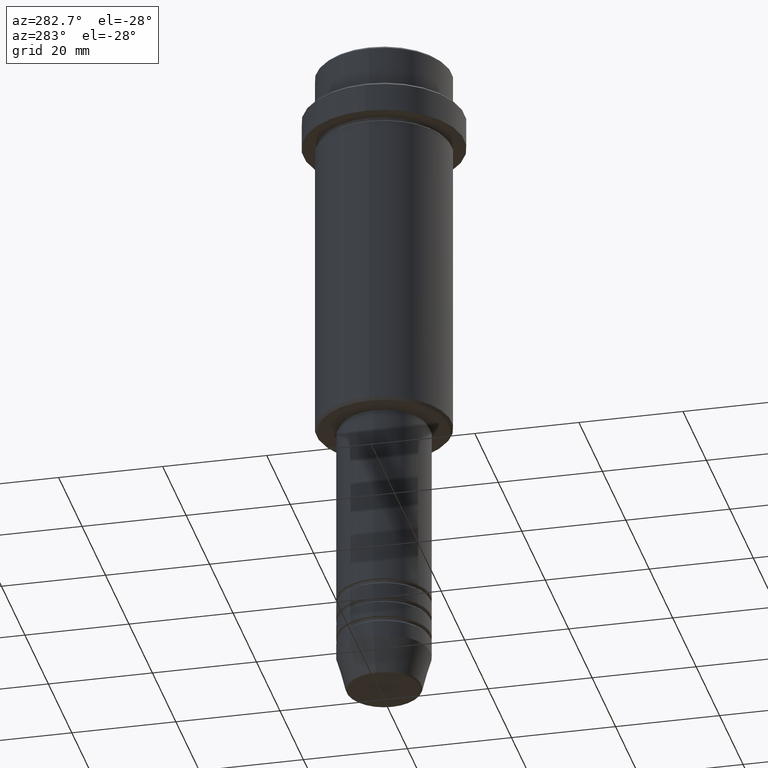
[diagram: clean part render]
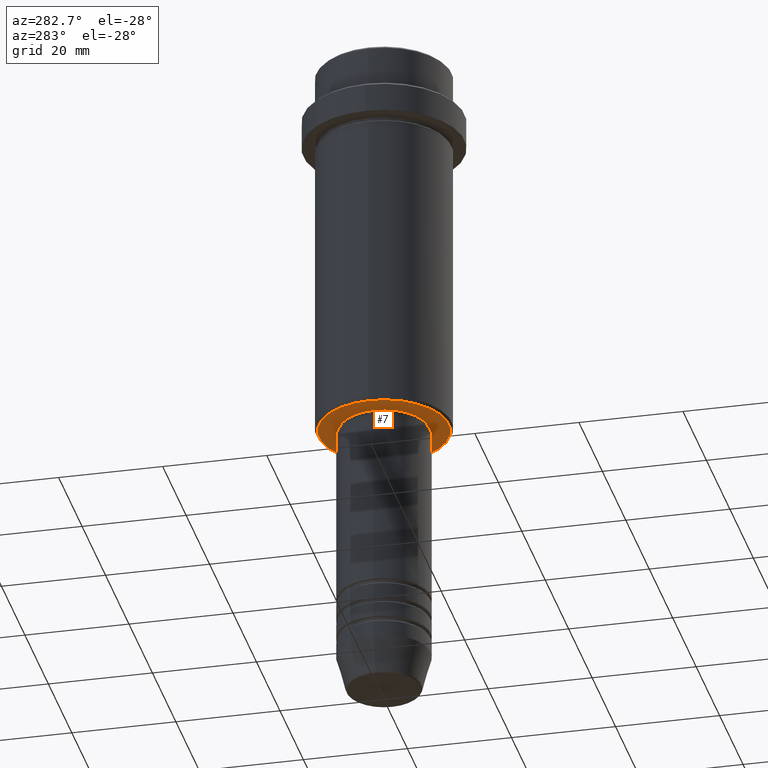
[diagram: same view with one face highlighted and labeled with its STEP entity id]
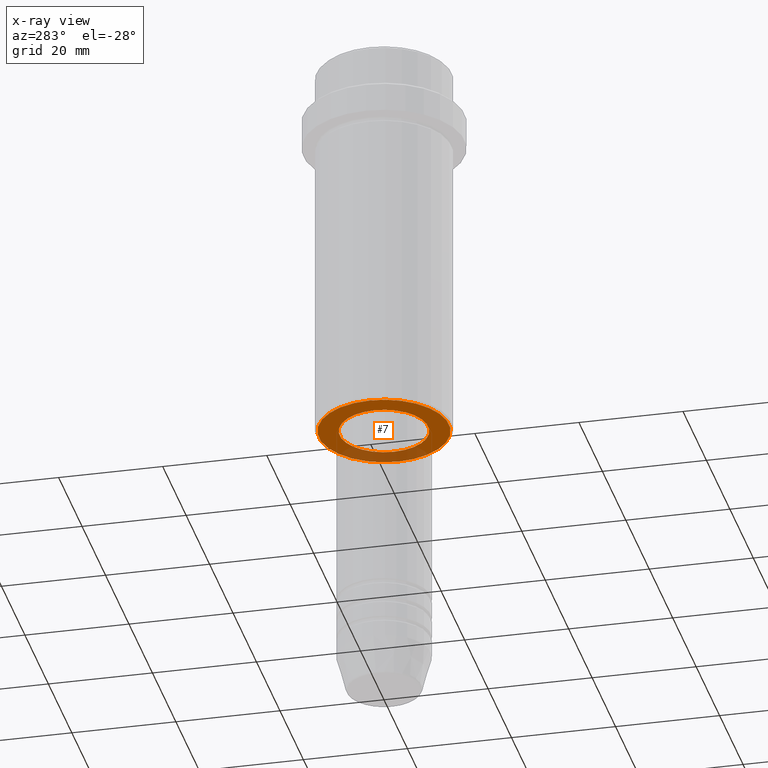
[diagram: x-ray of the same camera — body ghosted, the highlighted face saturated]
A machine part, auxiliary view. The second image highlights one B-rep face of the part: STEP entity #7.
The next image is the same camera in x-ray: the body ghosted, the highlighted face saturated — about 24% of this face is hidden behind the body in this view.
In plain terms, the highlighted planar face has unit normal (0, 0, -1).
Its self-contained STEP definition (entity closure, byte-faithful):
#5 = VERTEX_POINT ( 'NONE', #942 ) ;
#7 = ADVANCED_FACE ( 'NONE', ( #1407, #283 ), #850, .T. ) ;
#100 = DIRECTION ( 'NONE',  ( 0.000000000000000000, 0.000000000000000000, -1.000000000000000000 ) ) ;
#180 = ORIENTED_EDGE ( 'NONE', *, *, #1179, .T. ) ;
#237 = CARTESIAN_POINT ( 'NONE',  ( 0.000000000000000000, 0.000000000000000000, -75.00000000000001421 ) ) ;
#283 = FACE_BOUND ( 'NONE', #1231, .T. ) ;
#329 = ORIENTED_EDGE ( 'NONE', *, *, #370, .T. ) ;
#338 = DIRECTION ( 'NONE',  ( -0.000000000000000000, -0.000000000000000000, 1.000000000000000000 ) ) ;
#344 = CIRCLE ( 'NONE', #936, 8.499999999999994671 ) ;
#353 = AXIS2_PLACEMENT_3D ( 'NONE', #705, #725, #497 ) ;
#370 = EDGE_CURVE ( 'NONE', #5, #940, #1031, .T. ) ;
#414 = DIRECTION ( 'NONE',  ( -1.000000000000000000, 0.000000000000000000, -0.000000000000000000 ) ) ;
#432 = AXIS2_PLACEMENT_3D ( 'NONE', #237, #338, #551 ) ;
#497 = DIRECTION ( 'NONE',  ( -1.000000000000000000, 0.000000000000000000, 0.000000000000000000 ) ) ;
#551 = DIRECTION ( 'NONE',  ( 1.000000000000000000, 0.000000000000000000, 0.000000000000000000 ) ) ;
#592 = CARTESIAN_POINT ( 'NONE',  ( 0.000000000000000000, 0.000000000000000000, -75.00000000000001421 ) ) ;
#594 = ORIENTED_EDGE ( 'NONE', *, *, #935, .T. ) ;
#634 = EDGE_CURVE ( 'NONE', #1297, #865, #796, .T. ) ;
#682 = DIRECTION ( 'NONE',  ( 1.000000000000000000, 0.000000000000000000, 0.000000000000000000 ) ) ;
#705 = CARTESIAN_POINT ( 'NONE',  ( 0.000000000000000000, 0.000000000000000000, -75.00000000000001421 ) ) ;
#706 = DIRECTION ( 'NONE',  ( 0.000000000000000000, 0.000000000000000000, -1.000000000000000000 ) ) ;
#707 = EDGE_LOOP ( 'NONE', ( #329, #594 ) ) ;
#725 = DIRECTION ( 'NONE',  ( 0.000000000000000000, 0.000000000000000000, -1.000000000000000000 ) ) ;
#796 = CIRCLE ( 'NONE', #432, 8.499999999999994671 ) ;
#850 = PLANE ( 'NONE',  #1124 ) ;
#865 = VERTEX_POINT ( 'NONE', #1159 ) ;
#935 = EDGE_CURVE ( 'NONE', #940, #5, #976, .T. ) ;
#936 = AXIS2_PLACEMENT_3D ( 'NONE', #1028, #1248, #682 ) ;
#940 = VERTEX_POINT ( 'NONE', #1171 ) ;
#942 = CARTESIAN_POINT ( 'NONE',  ( 12.50000000000001066, 0.000000000000000000, -75.00000000000001421 ) ) ;
#976 = CIRCLE ( 'NONE', #353, 12.50000000000001066 ) ;
#1028 = CARTESIAN_POINT ( 'NONE',  ( 0.000000000000000000, 0.000000000000000000, -75.00000000000001421 ) ) ;
#1031 = CIRCLE ( 'NONE', #1076, 12.50000000000001066 ) ;
#1068 = CARTESIAN_POINT ( 'NONE',  ( -8.499999999999994671, 1.040949779275249745E-15, -75.00000000000001421 ) ) ;
#1076 = AXIS2_PLACEMENT_3D ( 'NONE', #592, #706, #1150 ) ;
#1124 = AXIS2_PLACEMENT_3D ( 'NONE', #1289, #100, #414 ) ;
#1150 = DIRECTION ( 'NONE',  ( -1.000000000000000000, 0.000000000000000000, 0.000000000000000000 ) ) ;
#1159 = CARTESIAN_POINT ( 'NONE',  ( 8.499999999999994671, 0.000000000000000000, -75.00000000000001421 ) ) ;
#1171 = CARTESIAN_POINT ( 'NONE',  ( -12.50000000000001066, 1.561424668912876097E-15, -75.00000000000001421 ) ) ;
#1179 = EDGE_CURVE ( 'NONE', #865, #1297, #344, .T. ) ;
#1191 = ORIENTED_EDGE ( 'NONE', *, *, #634, .T. ) ;
#1231 = EDGE_LOOP ( 'NONE', ( #180, #1191 ) ) ;
#1248 = DIRECTION ( 'NONE',  ( -0.000000000000000000, -0.000000000000000000, 1.000000000000000000 ) ) ;
#1289 = CARTESIAN_POINT ( 'NONE',  ( 0.000000000000000000, 13.00000000000000000, -75.00000000000001421 ) ) ;
#1297 = VERTEX_POINT ( 'NONE', #1068 ) ;
#1407 = FACE_OUTER_BOUND ( 'NONE', #707, .T. ) ;